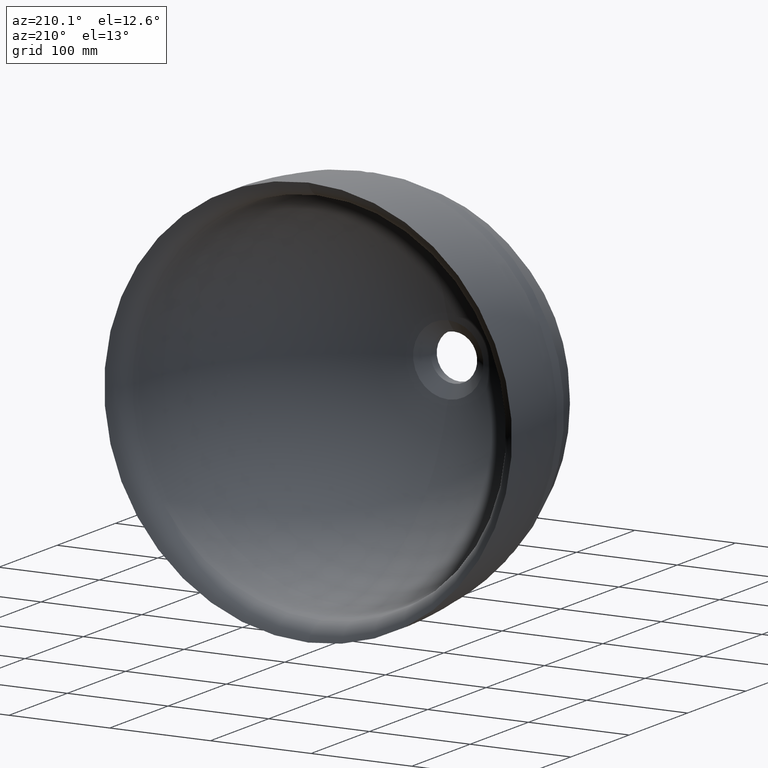
[diagram: clean part render]
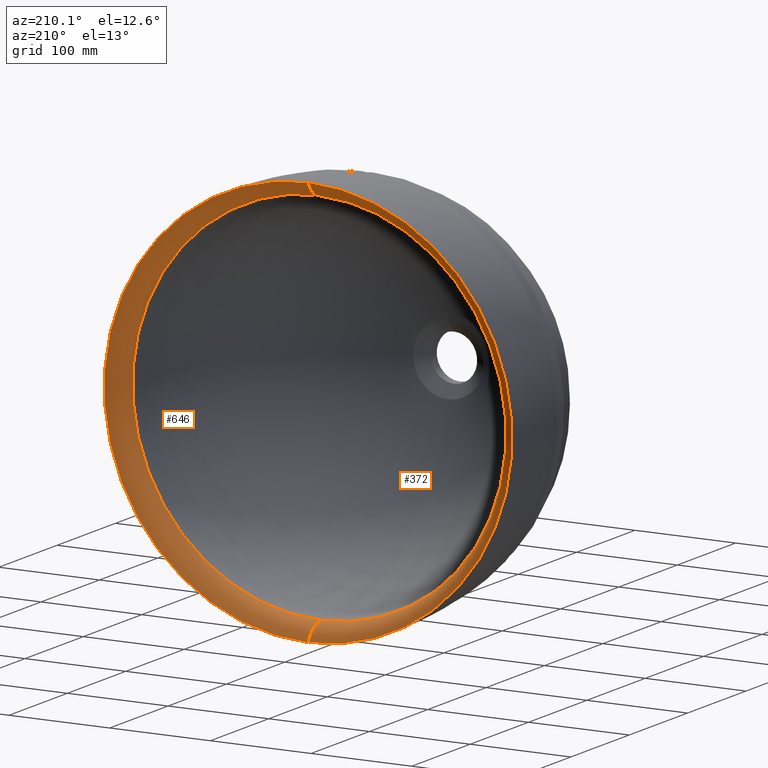
[diagram: same view with one multi-face feature highlighted, each face labeled with its STEP entity id]
A machine part, auxiliary view. The highlighted faces form ONE feature: a constant-radius fillet chain: 2 tangent blend faces with common blend radius 24.701 mm. The faces share edges in the B-rep.
Their STEP definitions:
[1] entity #372 (Torus):
#7 = VERTEX_POINT ( 'NONE', #480 ) ;
#22 = CIRCLE ( 'NONE', #112, 202.5000000000002300 ) ;
#40 = CARTESIAN_POINT ( 'NONE',  ( 0.0000000000000000000, 260.0000000000000000, -202.4999999999996600 ) ) ;
#49 = AXIS2_PLACEMENT_3D ( 'NONE', #246, #303, #666 ) ;
#52 = DIRECTION ( 'NONE',  ( -0.0000000000000000000, -1.000000000000000000, -0.0000000000000000000 ) ) ;
#112 = AXIS2_PLACEMENT_3D ( 'NONE', #561, #516, #300 ) ;
#172 = CIRCLE ( 'NONE', #49, 24.70099879950643600 ) ;
#178 = VERTEX_POINT ( 'NONE', #607 ) ;
#219 = TOROIDAL_SURFACE ( 'NONE', #275, 211.7896527892887400, 24.70099879950642900 ) ;
#225 = EDGE_CURVE ( 'NONE', #178, #566, #323, .T. ) ;
#232 = DIRECTION ( 'NONE',  ( -0.0000000000000000000, -1.000000000000000000, -0.0000000000000000000 ) ) ;
#246 = CARTESIAN_POINT ( 'NONE',  ( 2.593675203809317700E-014, 237.1124118188993200, 211.7896527892887400 ) ) ;
#263 = ORIENTED_EDGE ( 'NONE', *, *, #532, .F. ) ;
#275 = AXIS2_PLACEMENT_3D ( 'NONE', #510, #52, #325 ) ;
#286 = ORIENTED_EDGE ( 'NONE', *, *, #328, .F. ) ;
#300 = DIRECTION ( 'NONE',  ( 0.0000000000000000000, 0.0000000000000000000, -1.000000000000000000 ) ) ;
#301 = CIRCLE ( 'NONE', #409, 24.70099879950643600 ) ;
#303 = DIRECTION ( 'NONE',  ( 1.000000000000000000, 0.0000000000000000000, -1.224646799147353200E-016 ) ) ;
#323 = CIRCLE ( 'NONE', #665, 187.1046061230580100 ) ;
#325 = DIRECTION ( 'NONE',  ( 0.0000000000000000000, 0.0000000000000000000, -1.000000000000000000 ) ) ;
#328 = EDGE_CURVE ( 'NONE', #178, #7, #172, .T. ) ;
#372 = ADVANCED_FACE ( 'NONE', ( #541 ), #219, .T. ) ;
#395 = ORIENTED_EDGE ( 'NONE', *, *, #638, .T. ) ;
#409 = AXIS2_PLACEMENT_3D ( 'NONE', #550, #618, #526 ) ;
#479 = EDGE_LOOP ( 'NONE', ( #286, #521, #395, #263 ) ) ;
#480 = CARTESIAN_POINT ( 'NONE',  ( 2.479909768273386100E-014, 260.0000000000000000, 202.4999999999996600 ) ) ;
#510 = CARTESIAN_POINT ( 'NONE',  ( 0.0000000000000000000, 237.1124118188993200, 0.0000000000000000000 ) ) ;
#516 = DIRECTION ( 'NONE',  ( -0.0000000000000000000, -1.000000000000000000, -0.0000000000000000000 ) ) ;
#521 = ORIENTED_EDGE ( 'NONE', *, *, #225, .T. ) ;
#526 = DIRECTION ( 'NONE',  ( 0.0000000000000000000, 0.0000000000000000000, 1.000000000000000000 ) ) ;
#532 = EDGE_CURVE ( 'NONE', #7, #692, #22, .T. ) ;
#539 = CARTESIAN_POINT ( 'NONE',  ( 0.0000000000000000000, 238.0000000000000300, 0.0000000000000000000 ) ) ;
#541 = FACE_OUTER_BOUND ( 'NONE', #479, .T. ) ;
#550 = CARTESIAN_POINT ( 'NONE',  ( 0.0000000000000000000, 237.1124118188993200, -211.7896527892887400 ) ) ;
#561 = CARTESIAN_POINT ( 'NONE',  ( 0.0000000000000000000, 260.0000000000000000, 0.0000000000000000000 ) ) ;
#566 = VERTEX_POINT ( 'NONE', #658 ) ;
#589 = DIRECTION ( 'NONE',  ( 0.0000000000000000000, 0.0000000000000000000, -1.000000000000000000 ) ) ;
#607 = CARTESIAN_POINT ( 'NONE',  ( 2.291370569943290600E-014, 238.0000000000000300, 187.1046061230578300 ) ) ;
#618 = DIRECTION ( 'NONE',  ( -1.000000000000000000, 0.0000000000000000000, 0.0000000000000000000 ) ) ;
#638 = EDGE_CURVE ( 'NONE', #566, #692, #301, .T. ) ;
#658 = CARTESIAN_POINT ( 'NONE',  ( 0.0000000000000000000, 238.0000000000000300, -187.1046061230578300 ) ) ;
#665 = AXIS2_PLACEMENT_3D ( 'NONE', #539, #232, #589 ) ;
#666 = DIRECTION ( 'NONE',  ( -1.224646799147352500E-016, 0.0000000000000000000, -1.000000000000000000 ) ) ;
#692 = VERTEX_POINT ( 'NONE', #40 ) ;
[2] entity #646 (Torus):
#7 = VERTEX_POINT ( 'NONE', #480 ) ;
#8 = TOROIDAL_SURFACE ( 'NONE', #537, 211.7896527892887400, 24.70099879950642900 ) ;
#40 = CARTESIAN_POINT ( 'NONE',  ( 0.0000000000000000000, 260.0000000000000000, -202.4999999999996600 ) ) ;
#49 = AXIS2_PLACEMENT_3D ( 'NONE', #246, #303, #666 ) ;
#135 = FACE_OUTER_BOUND ( 'NONE', #253, .T. ) ;
#172 = CIRCLE ( 'NONE', #49, 24.70099879950643600 ) ;
#178 = VERTEX_POINT ( 'NONE', #607 ) ;
#214 = CARTESIAN_POINT ( 'NONE',  ( 0.0000000000000000000, 237.1124118188993200, 0.0000000000000000000 ) ) ;
#238 = ORIENTED_EDGE ( 'NONE', *, *, #244, .F. ) ;
#244 = EDGE_CURVE ( 'NONE', #692, #7, #403, .T. ) ;
#246 = CARTESIAN_POINT ( 'NONE',  ( 2.593675203809317700E-014, 237.1124118188993200, 211.7896527892887400 ) ) ;
#253 = EDGE_LOOP ( 'NONE', ( #447, #627, #238, #490 ) ) ;
#258 = EDGE_CURVE ( 'NONE', #566, #178, #564, .T. ) ;
#293 = CARTESIAN_POINT ( 'NONE',  ( 0.0000000000000000000, 238.0000000000000300, 0.0000000000000000000 ) ) ;
#301 = CIRCLE ( 'NONE', #409, 24.70099879950643600 ) ;
#303 = DIRECTION ( 'NONE',  ( 1.000000000000000000, 0.0000000000000000000, -1.224646799147353200E-016 ) ) ;
#328 = EDGE_CURVE ( 'NONE', #178, #7, #172, .T. ) ;
#388 = AXIS2_PLACEMENT_3D ( 'NONE', #293, #603, #448 ) ;
#402 = AXIS2_PLACEMENT_3D ( 'NONE', #575, #634, #527 ) ;
#403 = CIRCLE ( 'NONE', #402, 202.5000000000002300 ) ;
#409 = AXIS2_PLACEMENT_3D ( 'NONE', #550, #618, #526 ) ;
#447 = ORIENTED_EDGE ( 'NONE', *, *, #258, .T. ) ;
#448 = DIRECTION ( 'NONE',  ( 0.0000000000000000000, 0.0000000000000000000, -1.000000000000000000 ) ) ;
#480 = CARTESIAN_POINT ( 'NONE',  ( 2.479909768273386100E-014, 260.0000000000000000, 202.4999999999996600 ) ) ;
#490 = ORIENTED_EDGE ( 'NONE', *, *, #638, .F. ) ;
#526 = DIRECTION ( 'NONE',  ( 0.0000000000000000000, 0.0000000000000000000, 1.000000000000000000 ) ) ;
#527 = DIRECTION ( 'NONE',  ( 0.0000000000000000000, 0.0000000000000000000, -1.000000000000000000 ) ) ;
#537 = AXIS2_PLACEMENT_3D ( 'NONE', #214, #684, #670 ) ;
#550 = CARTESIAN_POINT ( 'NONE',  ( 0.0000000000000000000, 237.1124118188993200, -211.7896527892887400 ) ) ;
#564 = CIRCLE ( 'NONE', #388, 187.1046061230580100 ) ;
#566 = VERTEX_POINT ( 'NONE', #658 ) ;
#575 = CARTESIAN_POINT ( 'NONE',  ( 0.0000000000000000000, 260.0000000000000000, 0.0000000000000000000 ) ) ;
#603 = DIRECTION ( 'NONE',  ( -0.0000000000000000000, -1.000000000000000000, -0.0000000000000000000 ) ) ;
#607 = CARTESIAN_POINT ( 'NONE',  ( 2.291370569943290600E-014, 238.0000000000000300, 187.1046061230578300 ) ) ;
#618 = DIRECTION ( 'NONE',  ( -1.000000000000000000, 0.0000000000000000000, 0.0000000000000000000 ) ) ;
#627 = ORIENTED_EDGE ( 'NONE', *, *, #328, .T. ) ;
#634 = DIRECTION ( 'NONE',  ( -0.0000000000000000000, -1.000000000000000000, -0.0000000000000000000 ) ) ;
#638 = EDGE_CURVE ( 'NONE', #566, #692, #301, .T. ) ;
#646 = ADVANCED_FACE ( 'NONE', ( #135 ), #8, .T. ) ;
#658 = CARTESIAN_POINT ( 'NONE',  ( 0.0000000000000000000, 238.0000000000000300, -187.1046061230578300 ) ) ;
#666 = DIRECTION ( 'NONE',  ( -1.224646799147352500E-016, 0.0000000000000000000, -1.000000000000000000 ) ) ;
#670 = DIRECTION ( 'NONE',  ( 0.0000000000000000000, 0.0000000000000000000, -1.000000000000000000 ) ) ;
#684 = DIRECTION ( 'NONE',  ( -0.0000000000000000000, -1.000000000000000000, -0.0000000000000000000 ) ) ;
#692 = VERTEX_POINT ( 'NONE', #40 ) ;